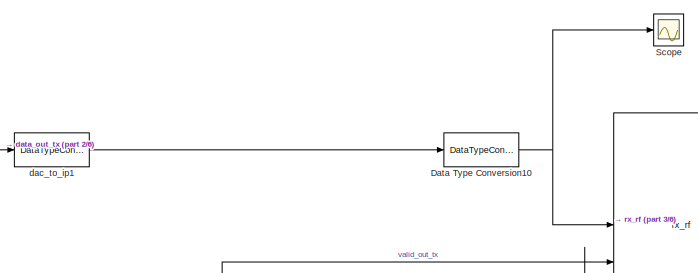
[diagram: root canvas - part 1/6, top center region]
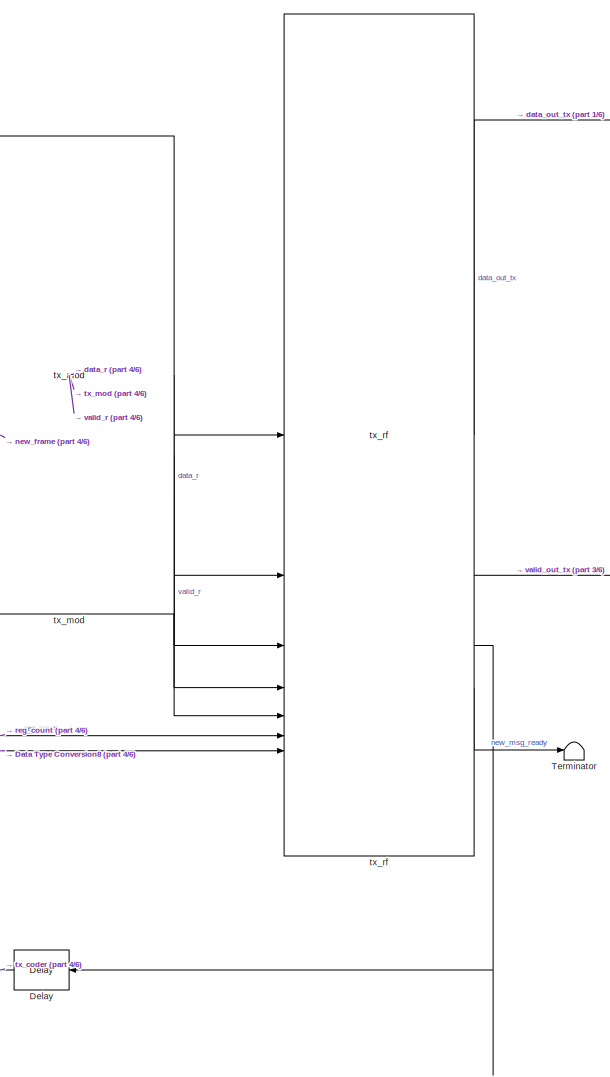
[diagram: root canvas - part 2/6, center side, full height]
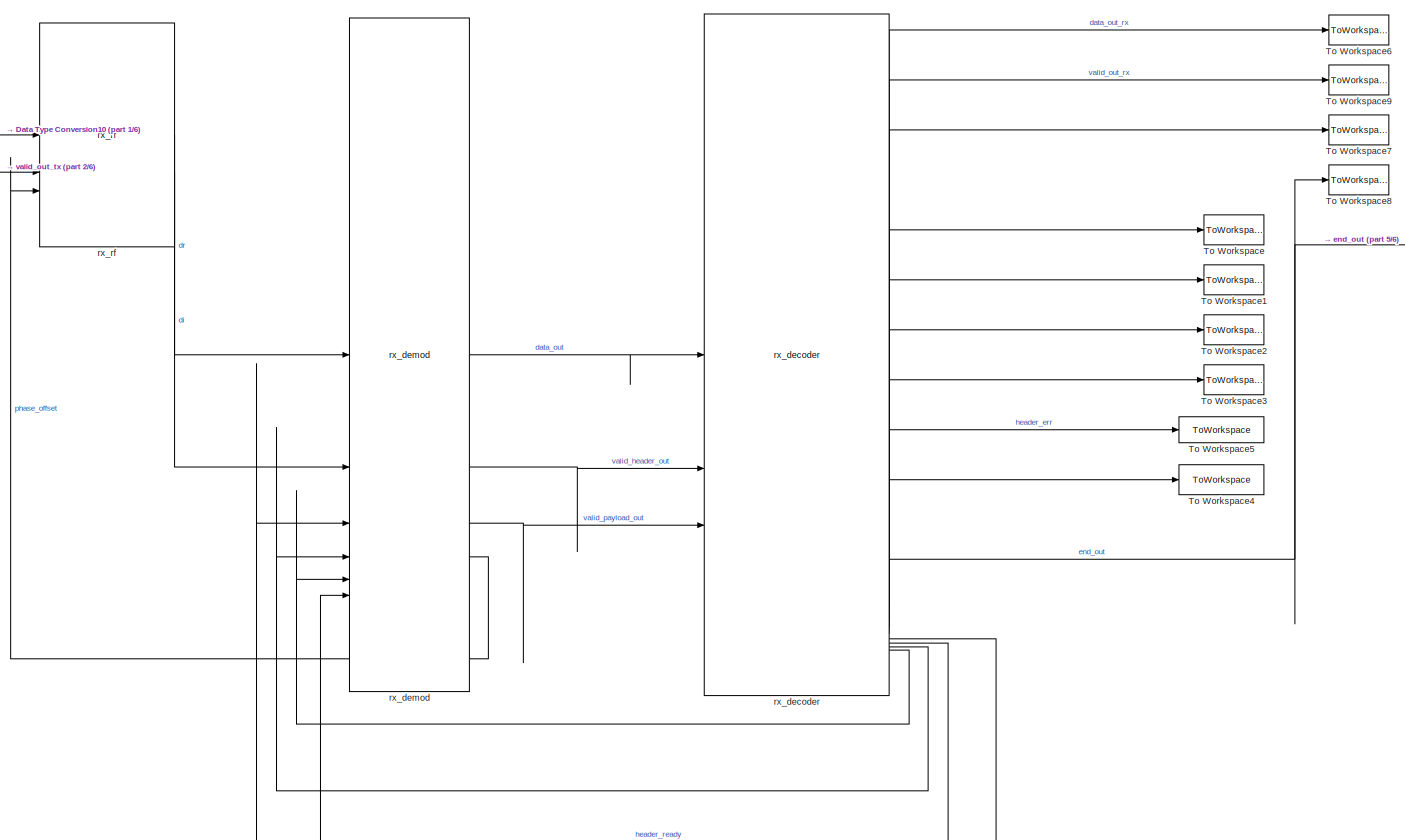
[diagram: root canvas - part 3/6, right side, full height]
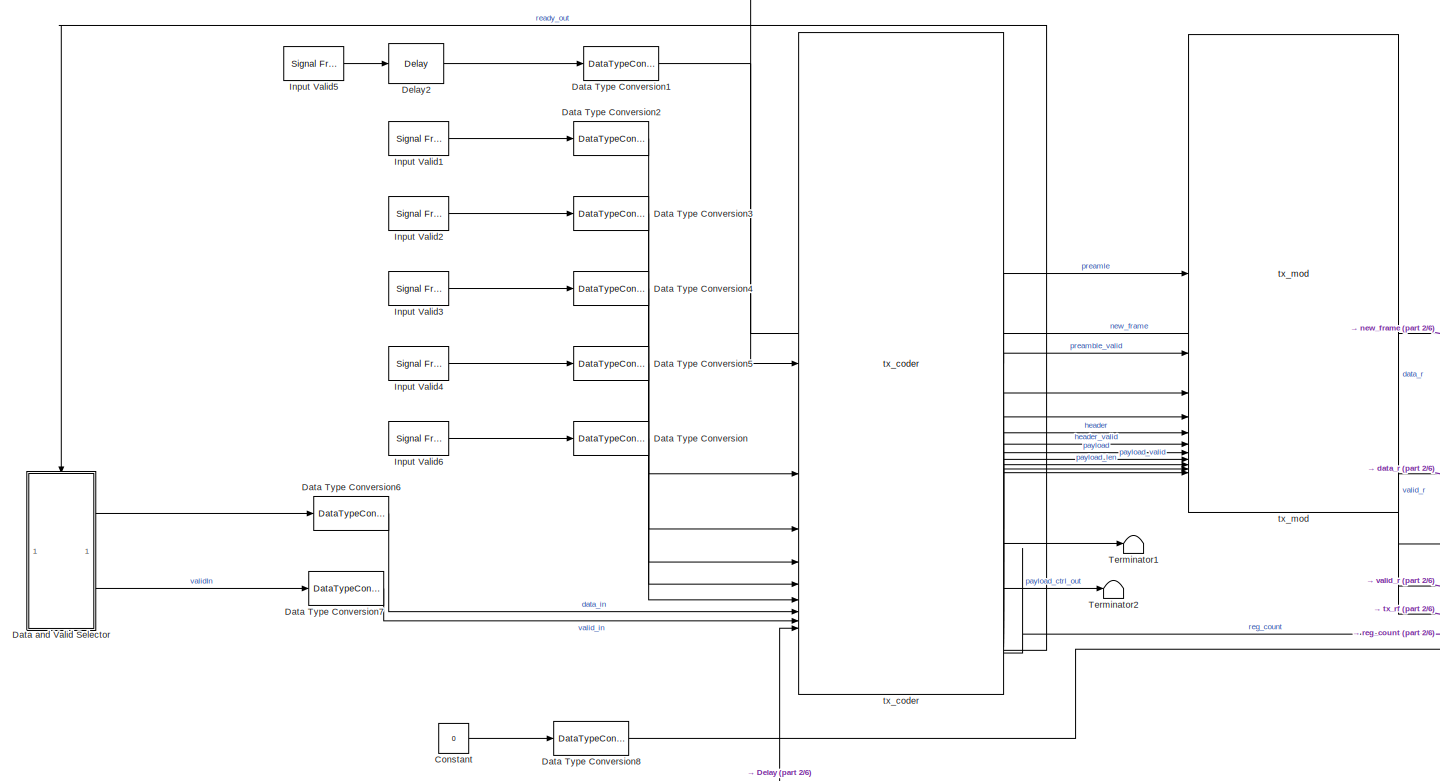
[diagram: root canvas - part 4/6, middle left region]
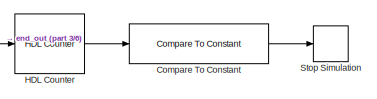
[diagram: root canvas - part 5/6, top right region]
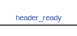
[diagram: root canvas - part 6/6, bottom right region]
MODEL slx_798c2c5c5ba2
KIND model
CONFIG AbsTol = auto
CONFIG EnableMultiTasking = off
CONFIG FixedStep = auto
CONFIG MaxStep = auto
CONFIG MinStep = auto
CONFIG RelTol = 1e-3
CONFIG SampleTimeConstraint = Unconstrained
CONFIG SolverName = FixedStepDiscrete
CONFIG StartTime = 0.0
CONFIG StopTime = stopTime
BLOCK [Reference] Compare To Constant  REF=hdlsllib/Logic and Bit
Operations/Compare
To Constant
  SourceBlock = hdlsllib/Logic and Bit\nOperations/Compare\nTo Constant
  SourceType = Compare To Constant
BLOCK [Constant] Constant
  OutDataTypeStr = uint32
  SampleTime = -1
  Value = 0
BLOCK [DataTypeConversion] Data Type Conversion
  OutDataTypeStr = boolean
  RndMeth = Floor
  SaturateOnIntegerOverflow = off
BLOCK [DataTypeConversion] Data Type Conversion1
  OutDataTypeStr = boolean
  RndMeth = Floor
  SaturateOnIntegerOverflow = off
BLOCK [DataTypeConversion] Data Type Conversion10
  ConvertRealWorld = Stored Integer (SI)
  OutDataTypeStr = int16
  RndMeth = Floor
  SaturateOnIntegerOverflow = off
BLOCK [DataTypeConversion] Data Type Conversion2
  OutDataTypeStr = uint32
  RndMeth = Floor
  SaturateOnIntegerOverflow = off
BLOCK [DataTypeConversion] Data Type Conversion3
  OutDataTypeStr = uint32
  RndMeth = Floor
  SaturateOnIntegerOverflow = off
BLOCK [DataTypeConversion] Data Type Conversion4
  OutDataTypeStr = uint32
  RndMeth = Floor
  SaturateOnIntegerOverflow = off
BLOCK [DataTypeConversion] Data Type Conversion5
  OutDataTypeStr = uint32
  RndMeth = Floor
  SaturateOnIntegerOverflow = off
BLOCK [DataTypeConversion] Data Type Conversion6
  OutDataTypeStr = uint8
  RndMeth = Floor
  SaturateOnIntegerOverflow = off
BLOCK [DataTypeConversion] Data Type Conversion7
  OutDataTypeStr = boolean
  RndMeth = Floor
  SaturateOnIntegerOverflow = off
BLOCK [DataTypeConversion] Data Type Conversion8
  OutDataTypeStr = uint32
  RndMeth = Floor
  SaturateOnIntegerOverflow = off
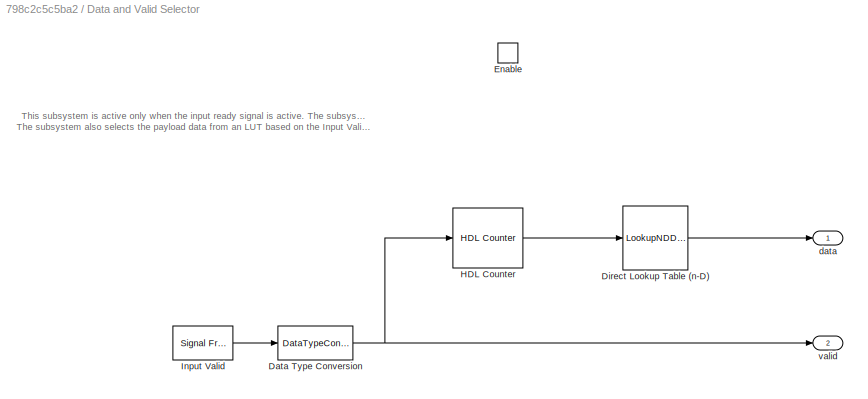
BLOCK [SubSystem] Data and Valid Selector
  TreatAsAtomicUnit = on
BLOCK [DataTypeConversion] Data and Valid Selector/Data Type Conversion
  OutDataTypeStr = boolean
  RndMeth = Floor
  SaturateOnIntegerOverflow = off
BLOCK [LookupNDDirect] Data and Valid Selector/Direct Lookup Table (n-D)
  DiagnosticForOutOfRangeInput = Error
  NumberOfTableDimensions = 1
  Table = uint8(pWords')
  TableDataTypeStr = uint8
BLOCK [EnablePort] Data and Valid Selector/Enable
BLOCK [Reference] Data and Valid Selector/HDL Counter  REF=hdlsllib/Sources/HDL Counter
  SourceBlock = hdlsllib/Sources/HDL Counter
  SourceType = HDL Counter
BLOCK [Reference] Data and Valid Selector/Input Valid  REF=dspsrcs4/Signal From
Workspace
  SourceBlock = dspsrcs4/Signal From\nWorkspace
  SourceType = Signal From Workspace
BLOCK [Outport] Data and Valid Selector/data
  InitialOutput = 0
  VectorParamsAs1DForOutWhenUnconnected = off
BLOCK [Outport] Data and Valid Selector/valid
  InitialOutput = 0
  Port = 2
  VectorParamsAs1DForOutWhenUnconnected = off
BLOCK [Delay] Delay
  DelayLength = 1
  InitialCondition = 0
  InputPortMap = u0
  NameLocation = top
  UseCircularBuffer = on
  UserDataPersistent = on
BLOCK [Delay] Delay2
  DelayLength = 100
  InitialCondition = 0
  InputPortMap = u0
  UseCircularBuffer = on
  UserDataPersistent = on
BLOCK [Reference] HDL Counter  REF=hdlsllib/Sources/HDL Counter
  SourceBlock = hdlsllib/Sources/HDL Counter
  SourceType = HDL Counter
BLOCK [Reference] Input Valid1  REF=dspsrcs4/Signal From
Workspace
  SourceBlock = dspsrcs4/Signal From\nWorkspace
  SourceType = Signal From Workspace
BLOCK [Reference] Input Valid2  REF=dspsrcs4/Signal From
Workspace
  SourceBlock = dspsrcs4/Signal From\nWorkspace
  SourceType = Signal From Workspace
BLOCK [Reference] Input Valid3  REF=dspsrcs4/Signal From
Workspace
  SourceBlock = dspsrcs4/Signal From\nWorkspace
  SourceType = Signal From Workspace
BLOCK [Reference] Input Valid4  REF=dspsrcs4/Signal From
Workspace
  SourceBlock = dspsrcs4/Signal From\nWorkspace
  SourceType = Signal From Workspace
BLOCK [Reference] Input Valid5  REF=dspsrcs4/Signal From
Workspace
  SourceBlock = dspsrcs4/Signal From\nWorkspace
  SourceType = Signal From Workspace
BLOCK [Reference] Input Valid6  REF=dspsrcs4/Signal From
Workspace
  SourceBlock = dspsrcs4/Signal From\nWorkspace
  SourceType = Signal From Workspace
BLOCK [Scope] Scope
  Floating = off
  NumInputPorts = 1
  ScopeSpecificationString = Simulink.scopes.TimeScopeBlockCfg('CurrentConfiguration', extmgr.ConfigurationSet(extmgr.Configuration('Core','General UI',true),extmgr.Configuration('Core','Source UI',true),extmgr.Configuration('Sources','WiredSimulink',true,'DataLoggingSaveFormat','Array','DataLoggingDecimation','1'),extmgr.Configuration('Visuals','Time Domain',true,'SerializedDisplays',{struct('MinYLimReal','-2754.75','MaxYLim...<+2024ch>
BLOCK [Stop] Stop Simulation
BLOCK [Terminator] Terminator
BLOCK [Terminator] Terminator1
BLOCK [Terminator] Terminator2
BLOCK [ToWorkspace] To Workspace
  MaxDataPoints = inf
  SampleTime = 1/CONST.fs
  Save2DSignal = 2-D array (concatenate along first dimension)
  VariableName = reg0Out
BLOCK [ToWorkspace] To Workspace1
  MaxDataPoints = inf
  SampleTime = 1/CONST.fs
  Save2DSignal = 2-D array (concatenate along first dimension)
  VariableName = reg1Out
BLOCK [ToWorkspace] To Workspace2
  MaxDataPoints = inf
  SampleTime = 1/CONST.fs
  Save2DSignal = 2-D array (concatenate along first dimension)
  VariableName = reg2Out
BLOCK [ToWorkspace] To Workspace3
  MaxDataPoints = inf
  SampleTime = 1/CONST.fs
  Save2DSignal = 2-D array (concatenate along first dimension)
  VariableName = reg3Out
BLOCK [ToWorkspace] To Workspace4
  MaxDataPoints = inf
  SampleTime = 1/CONST.fs
  Save2DSignal = 2-D array (concatenate along first dimension)
  VariableName = headerEndOut
BLOCK [ToWorkspace] To Workspace5
  MaxDataPoints = inf
  SampleTime = 1/CONST.fs
  Save2DSignal = 2-D array (concatenate along first dimension)
  VariableName = headerErrOut
BLOCK [ToWorkspace] To Workspace6
  MaxDataPoints = inf
  SampleTime = 1/CONST.fs
  Save2DSignal = 2-D array (concatenate along first dimension)
  VariableName = dataOut
BLOCK [ToWorkspace] To Workspace7
  MaxDataPoints = inf
  SampleTime = 1/CONST.fs
  Save2DSignal = 2-D array (concatenate along first dimension)
  VariableName = startOut
BLOCK [ToWorkspace] To Workspace8
  MaxDataPoints = inf
  SampleTime = 1/CONST.fs
  Save2DSignal = 2-D array (concatenate along first dimension)
  VariableName = endOut
BLOCK [ToWorkspace] To Workspace9
  MaxDataPoints = inf
  SampleTime = 1/CONST.fs
  Save2DSignal = 2-D array (concatenate along first dimension)
  VariableName = validOut
BLOCK [DataTypeConversion] dac_to_ip1
  ConvertRealWorld = Stored Integer (SI)
  OutDataTypeStr = fixdt(1,14,13)
  RndMeth = Floor
  SaturateOnIntegerOverflow = off
BLOCK [Reference] rx_decoder  REF=HDL_ieee_8021513/rx_decoder
  SourceBlock = HDL_ieee_8021513/rx_decoder
  SourceProductName = HDL IEEE 8021513
  SourceType = SubSystem
BLOCK [Reference] rx_demod  REF=HDL_ieee_8021513/rx_demod
  SourceBlock = HDL_ieee_8021513/rx_demod
  SourceProductName = HDL IEEE 8021513
  SourceType = SubSystem
BLOCK [Reference] rx_rf  REF=HDL_ieee_8021513/rx_rf
  SourceBlock = HDL_ieee_8021513/rx_rf
  SourceProductName = HDL IEEE 8021513
  SourceType = SubSystem
BLOCK [Reference] tx_coder  REF=HDL_ieee_8021513/tx_coder
  SourceBlock = HDL_ieee_8021513/tx_coder
  SourceProductName = HDL IEEE 8021513
  SourceType = SubSystem
BLOCK [Reference] tx_mod  REF=HDL_ieee_8021513/tx_mod
  SourceBlock = HDL_ieee_8021513/tx_mod
  SourceProductName = HDL IEEE 8021513
  SourceType = SubSystem
BLOCK [Reference] tx_rf  REF=HDL_ieee_8021513/tx_rf
  SourceBlock = HDL_ieee_8021513/tx_rf
  SourceProductName = HDL IEEE 8021513
  SourceType = SubSystem
ANNOTATION Data and Valid Selector: This subsystem is active only when the input ready signal is active. The subsystem selects the Input Valid value and outputs the valid signal. The subsystem also selects the payload data from an LUT based on the Input Valid signal and outputs it as data signal.
LINE Compare To Constant:1 -> Stop Simulation:1
LINE Constant:1 -> Data Type Conversion8:1
NET Data Type Conversion10:1 -> Scope:1, rx_rf:1
NET Data Type Conversion1:1 -> tx_coder:1, tx_rf:1
LINE Data Type Conversion2:1 -> tx_coder:2
LINE Data Type Conversion3:1 -> tx_coder:3
LINE Data Type Conversion4:1 -> tx_coder:4
LINE Data Type Conversion5:1 -> tx_coder:5
LINE Data Type Conversion6:1 -> tx_coder:7
LINE Data Type Conversion7:1 -> tx_coder:8
LINE Data Type Conversion8:1 -> tx_rf:7
LINE Data Type Conversion:1 -> tx_coder:6
NET Data and Valid Selector/Data Type Conversion:1 -> Data and Valid Selector/HDL Counter:1, Data and Valid Selector/valid:1
LINE Data and Valid Selector/Direct Lookup Table (n-D):1 -> Data and Valid Selector/data:1
LINE Data and Valid Selector/HDL Counter:1 -> Data and Valid Selector/Direct Lookup Table (n-D):1
LINE Data and Valid Selector/Input Valid:1 -> Data and Valid Selector/Data Type Conversion:1
LINE Data and Valid Selector:1 -> Data Type Conversion6:1
LINE Data and Valid Selector:2 -> Data Type Conversion7:1
LINE Delay2:1 -> Data Type Conversion1:1
LINE Delay:1 -> tx_coder:9
LINE HDL Counter:1 -> Compare To Constant:1
LINE Input Valid1:1 -> Data Type Conversion2:1
LINE Input Valid2:1 -> Data Type Conversion3:1
LINE Input Valid3:1 -> Data Type Conversion4:1
LINE Input Valid4:1 -> Data Type Conversion5:1
LINE Input Valid5:1 -> Delay2:1
LINE Input Valid6:1 -> Data Type Conversion:1
LINE dac_to_ip1:1 -> Data Type Conversion10:1
LINE rx_decoder:1 -> To Workspace6:1
LINE rx_decoder:10 -> To Workspace4:1
LINE rx_decoder:11 -> rx_demod:6
LINE rx_decoder:12 -> rx_demod:3
LINE rx_decoder:13 -> rx_demod:4
LINE rx_decoder:14 -> rx_demod:5
LINE rx_decoder:2 -> To Workspace9:1
LINE rx_decoder:3 -> To Workspace7:1
NET rx_decoder:4 -> HDL Counter:1, To Workspace8:1
LINE rx_decoder:5 -> To Workspace:1
LINE rx_decoder:6 -> To Workspace1:1
LINE rx_decoder:7 -> To Workspace2:1
LINE rx_decoder:8 -> To Workspace3:1
LINE rx_decoder:9 -> To Workspace5:1
LINE rx_demod:1 -> rx_decoder:1
LINE rx_demod:2 -> rx_decoder:2
LINE rx_demod:3 -> rx_decoder:3
LINE rx_demod:4 -> rx_rf:3
LINE rx_rf:1 -> rx_demod:1
LINE rx_rf:2 -> rx_demod:2
LINE tx_coder:1 -> tx_mod:1
LINE tx_coder:10 -> tx_mod:10
LINE tx_coder:11 -> tx_mod:11
LINE tx_coder:12 -> Terminator1:1
LINE tx_coder:13 -> Terminator2:1
LINE tx_coder:14 -> Data and Valid Selector:enable
LINE tx_coder:15 -> tx_rf:6
LINE tx_coder:2 -> tx_mod:2
LINE tx_coder:3 -> tx_mod:3
LINE tx_coder:4 -> tx_mod:4
LINE tx_coder:5 -> tx_mod:5
LINE tx_coder:6 -> tx_mod:6
LINE tx_coder:7 -> tx_mod:7
LINE tx_coder:8 -> tx_mod:8
LINE tx_coder:9 -> tx_mod:9
LINE tx_mod:1 -> tx_rf:2
LINE tx_mod:2 -> tx_rf:3
LINE tx_mod:3 -> tx_rf:4
LINE tx_mod:4 -> tx_rf:5
LINE tx_rf:1 -> dac_to_ip1:1
LINE tx_rf:2 -> rx_rf:2
LINE tx_rf:3 -> Delay:1
LINE tx_rf:4 -> Terminator:1
note: NET lines group one-source signal fan-out (src -> all destinations, sorted); 1:1 wires keep LINE
